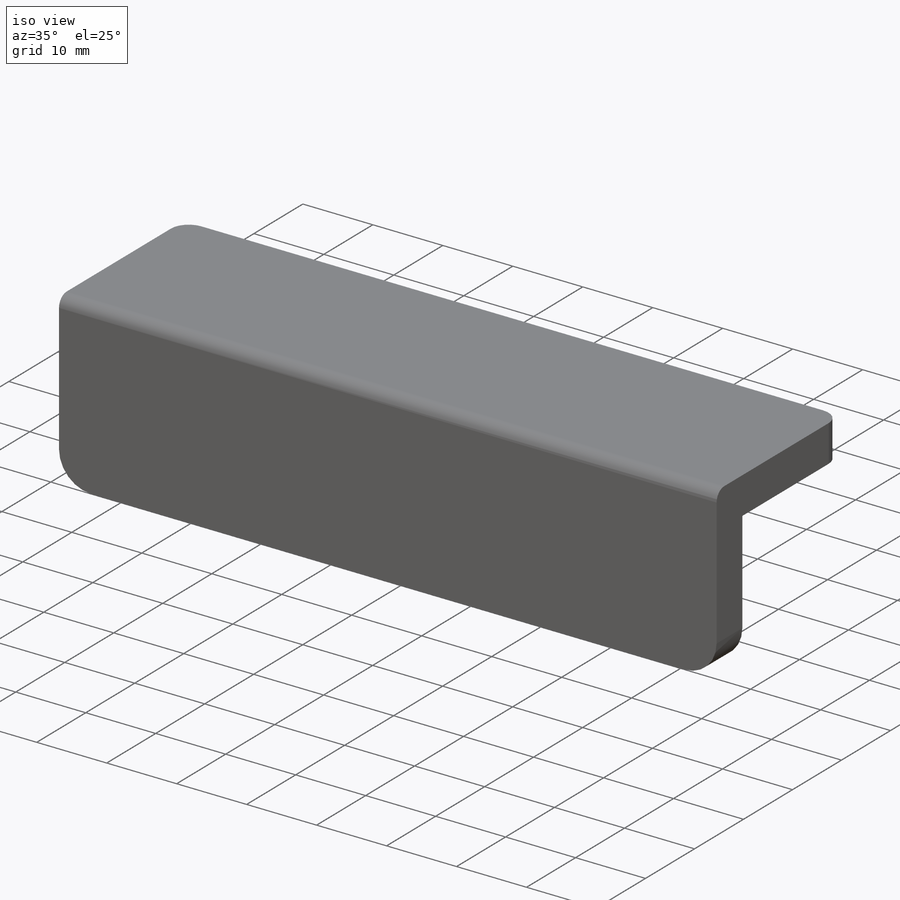
[diagram: iso view]
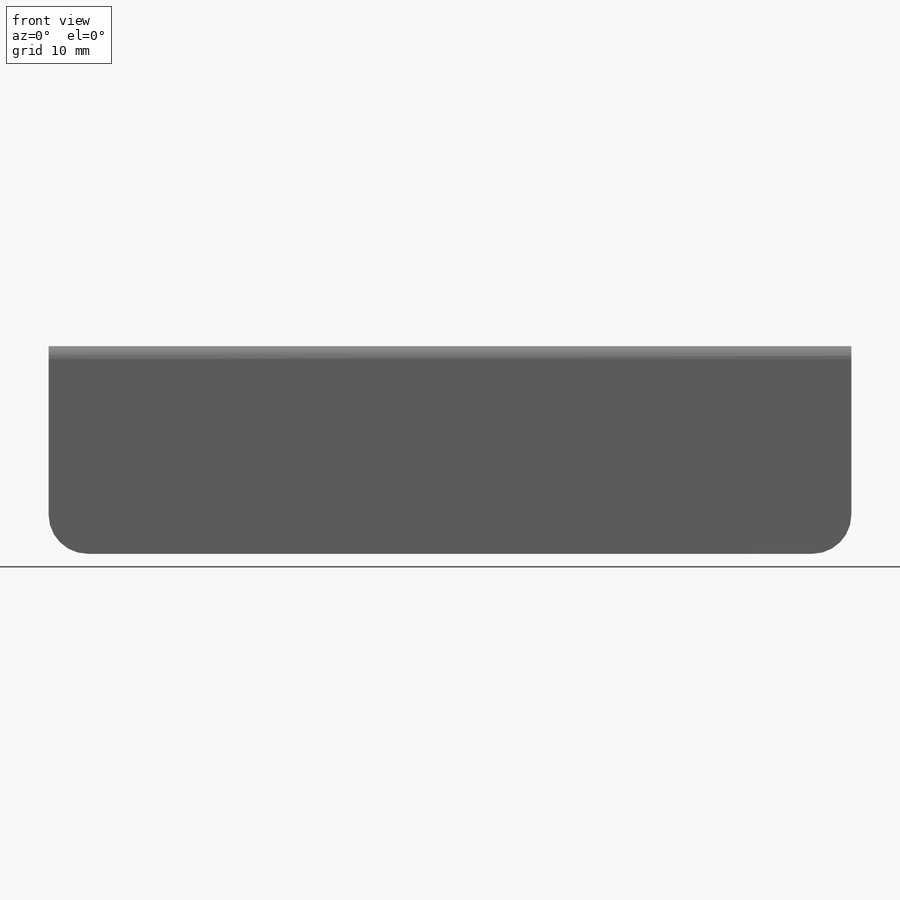
[diagram: front view]
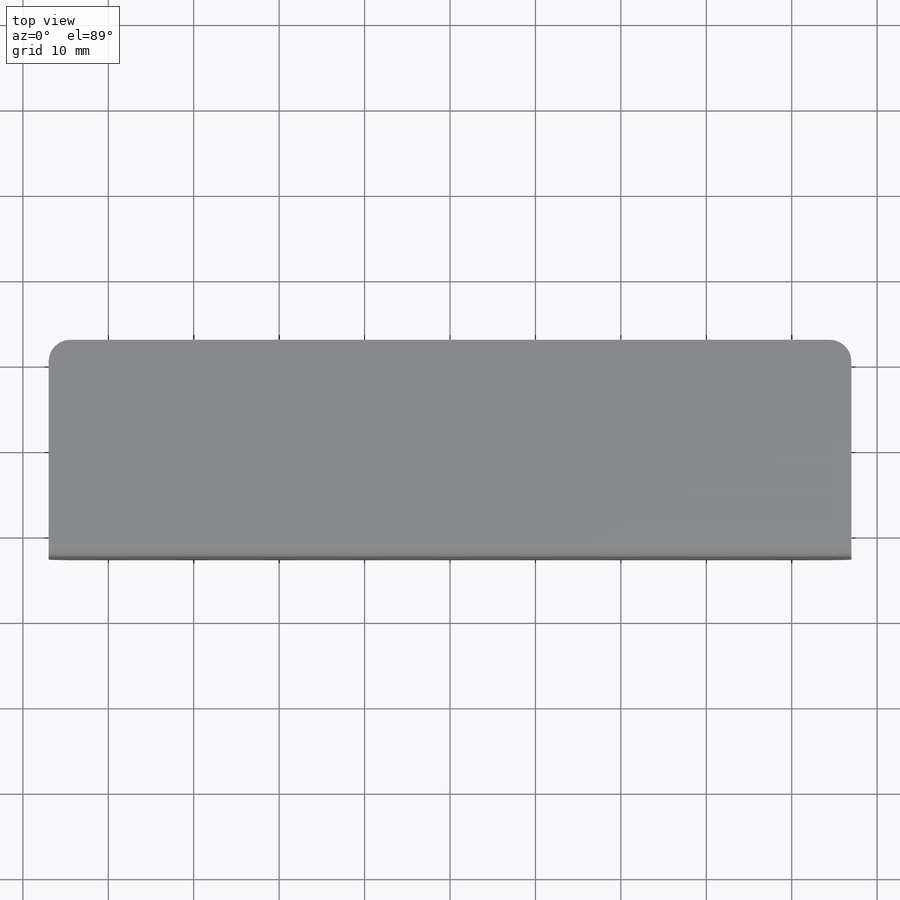
[diagram: top view]
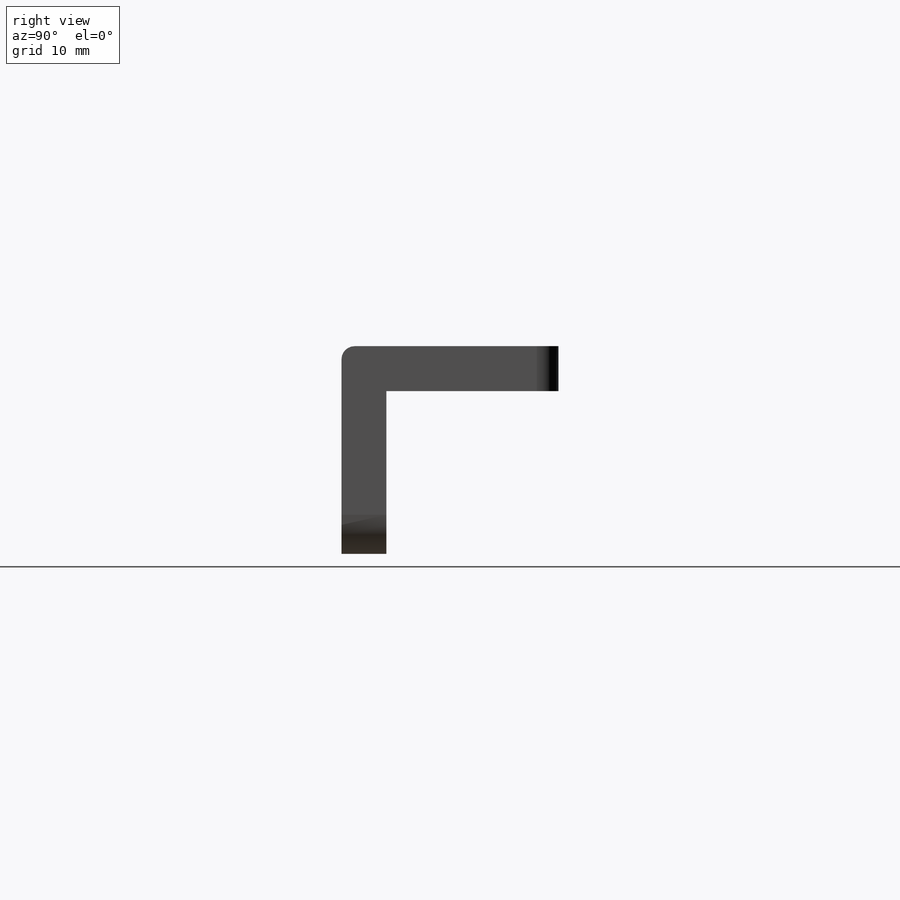
[diagram: right view]
SOLIDWORKS PART (.sldprt)
format: sldprt  version: not decoded by parser v0  size: 179,200 bytes
history: native  units: mm
features: fillet x5, sketch x2, extrude x2, material x1 (+11 scaffold rows collapsed)
feature tree (21):
  scaffold x11  (default folders/planes/origin — collapsed)
  material  "Material <not specified>"
  sketch  "Sketch1"  dims[D1=19.05mm D2=93.98mm]
  extrude  "Boss-Extrude1"  Depth=5.2578mm
  sketch  "Sketch2"  dims[D1=25.4mm]
  extrude  "Boss-Extrude2"  Depth=5.2578mm
  fillet  "Fillet6"  Radius=4.572mm
  fillet  "Fillet7"  Radius=4.572mm
  fillet  "Fillet8"  Radius=1.524mm
  fillet  "Fillet9"  Radius=2.54mm
  fillet  "Fillet10"  Radius=2.54mm
decode coverage: 9 of 9 modeling features carry decoded parameters
note: suppression state not decoded; provenance and decode notes live in map.json
